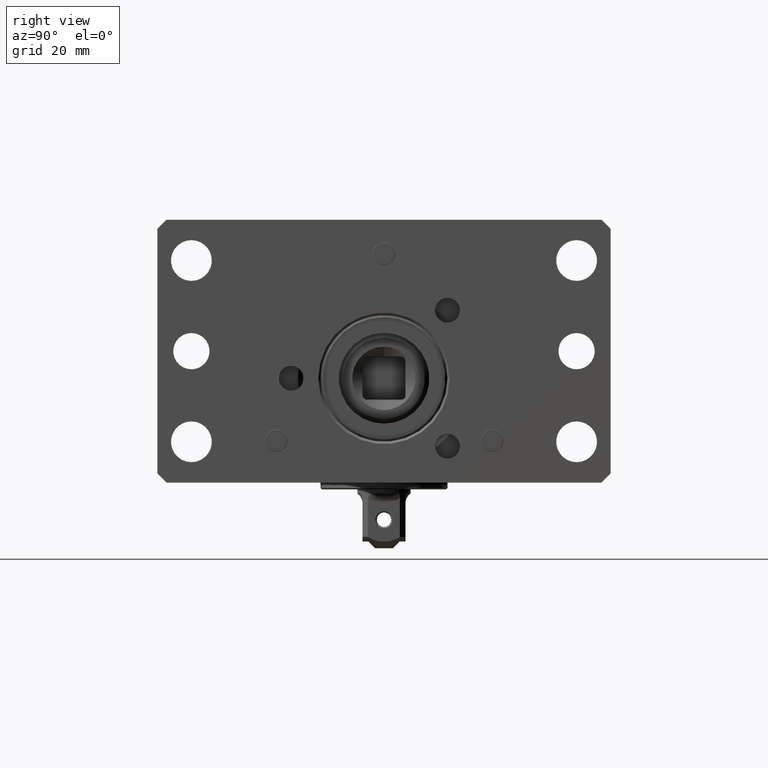
[diagram: clean part render]
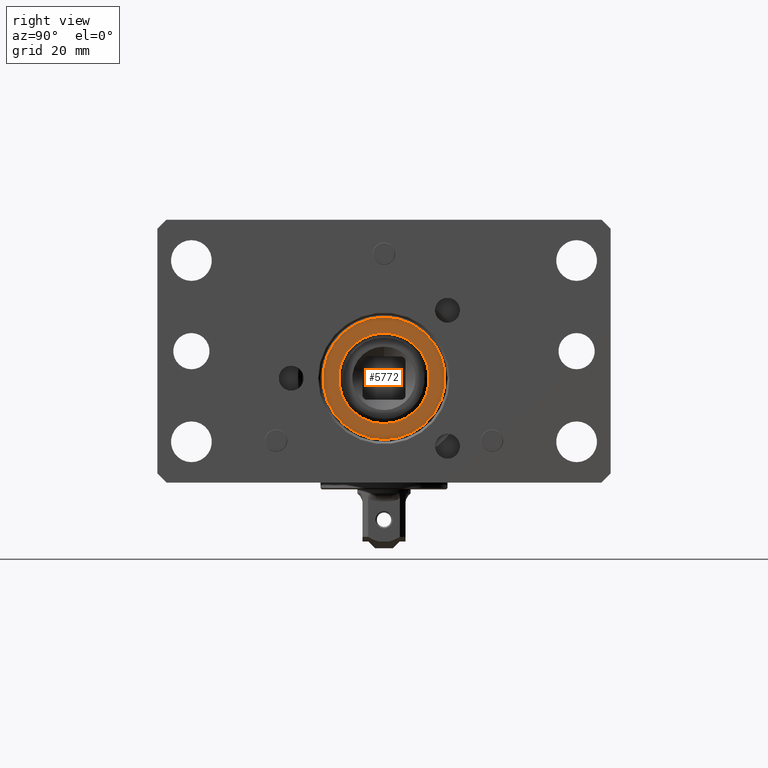
[diagram: same view with one face highlighted and labeled with its STEP entity id]
A machine part, right view. The second image highlights one B-rep face of the part: STEP entity #5772.
In plain terms, the highlighted planar face has unit normal (1, 0, -0).
Its self-contained STEP definition (entity closure, byte-faithful):
#1050=FACE_BOUND('',#1702,.T.);
#1326=FACE_OUTER_BOUND('',#1701,.T.);
#1701=EDGE_LOOP('',(#5082));
#1702=EDGE_LOOP('',(#5083,#5084));
#2102=CIRCLE('',#6459,13.5);
#2103=CIRCLE('',#6461,10.);
#2104=CIRCLE('',#6462,10.);
#2676=VERTEX_POINT('',#10786);
#2677=VERTEX_POINT('',#10790);
#2678=VERTEX_POINT('',#10791);
#3503=EDGE_CURVE('',#2676,#2676,#2102,.T.);
#3504=EDGE_CURVE('',#2677,#2678,#2103,.T.);
#3505=EDGE_CURVE('',#2678,#2677,#2104,.T.);
#5082=ORIENTED_EDGE('',*,*,#3503,.F.);
#5083=ORIENTED_EDGE('',*,*,#3504,.T.);
#5084=ORIENTED_EDGE('',*,*,#3505,.T.);
#5490=PLANE('',#6460);
#5772=ADVANCED_FACE('',(#1326,#1050),#5490,.T.);
#6459=AXIS2_PLACEMENT_3D('',#10788,#8084,#8085);
#6460=AXIS2_PLACEMENT_3D('',#10789,#8086,#8087);
#6461=AXIS2_PLACEMENT_3D('',#10792,#8088,#8089);
#6462=AXIS2_PLACEMENT_3D('',#10793,#8090,#8091);
#8084=DIRECTION('center_axis',(-1.,0.,1.35308431126191E-15));
#8085=DIRECTION('ref_axis',(-1.35308431126191E-15,-2.84687916904366E-32,
-1.));
#8086=DIRECTION('center_axis',(1.,0.,-1.35308431126191E-15));
#8087=DIRECTION('ref_axis',(-1.35308431126191E-15,-2.84687916904366E-32,
-1.));
#8088=DIRECTION('center_axis',(-1.,0.,1.35308431126191E-15));
#8089=DIRECTION('ref_axis',(1.35308431126191E-15,2.84687916904366E-32,1.));
#8090=DIRECTION('center_axis',(-1.,0.,1.35308431126191E-15));
#8091=DIRECTION('ref_axis',(1.35308431126191E-15,2.84687916904366E-32,1.));
#10786=CARTESIAN_POINT('',(86.,9.46425258445953E-15,13.4999999999999));
#10788=CARTESIAN_POINT('Origin',(86.,7.8109794056106E-15,-1.16365250768524E-13));
#10789=CARTESIAN_POINT('Origin',(86.,7.8109794056106E-15,13.9999999999999));
#10790=CARTESIAN_POINT('',(86.,7.8109794056106E-15,9.99999999999988));
#10791=CARTESIAN_POINT('',(86.,6.58633260646324E-15,-10.0000000000001));
#10792=CARTESIAN_POINT('Origin',(86.,7.8109794056106E-15,-1.16365250768524E-13));
#10793=CARTESIAN_POINT('Origin',(86.,7.8109794056106E-15,-1.16365250768524E-13));